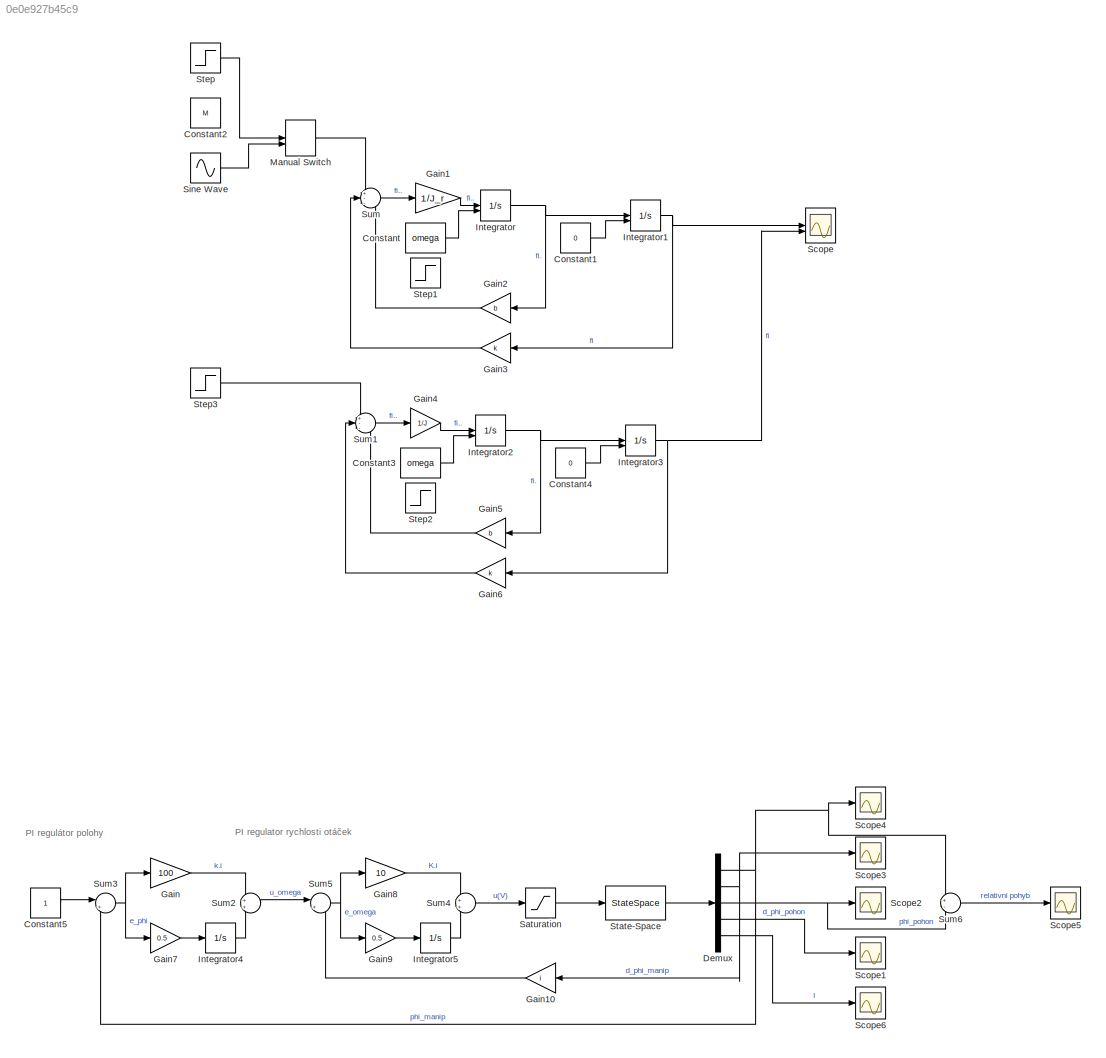
MODEL slx_0e0e927b45c9
KIND model
CONFIG AbsTol = auto
CONFIG EnableMultiTasking = off
CONFIG FixedStep = 1e-6
CONFIG MaxStep = auto
CONFIG MinStep = auto
CONFIG RelTol = 1e-3
CONFIG SampleTimeConstraint = Unconstrained
CONFIG SolverName = FixedStepAuto
CONFIG StartTime = 0.0
CONFIG StopTime = 10
BLOCK [Constant] Constant
  Value = omega
BLOCK [Constant] Constant1
  Value = 0
BLOCK [Constant] Constant2
  Value = M
BLOCK [Constant] Constant3
  Value = omega
BLOCK [Constant] Constant4
  Value = 0
BLOCK [Constant] Constant5
BLOCK [Demux] Demux
  Outputs = 5
BLOCK [Gain] Gain
  Gain = 100
BLOCK [Gain] Gain1
  Gain = 1/J_r
BLOCK [Gain] Gain10
  Gain = i
BLOCK [Gain] Gain2
  Gain = b
BLOCK [Gain] Gain3
  Gain = k
BLOCK [Gain] Gain4
  Gain = 1/J
BLOCK [Gain] Gain5
  Gain = b
BLOCK [Gain] Gain6
  Gain = k
BLOCK [Gain] Gain7
  Gain = 0.5
BLOCK [Gain] Gain8
  Gain = 10
BLOCK [Gain] Gain9
  Gain = 0.5
BLOCK [Integrator] Integrator
  InitialConditionSource = external
BLOCK [Integrator] Integrator1
  InitialConditionSource = external
BLOCK [Integrator] Integrator2
  InitialConditionSource = external
BLOCK [Integrator] Integrator3
  InitialConditionSource = external
BLOCK [Integrator] Integrator4
BLOCK [Integrator] Integrator5
BLOCK [ManualSwitch] Manual Switch
BLOCK [Saturate] Saturation
BLOCK [Scope] Scope
  Floating = off
  NumInputPorts = 2
  ScopeSpecificationString = Simulink.scopes.TimeScopeBlockCfg('CurrentConfiguration', extmgr.ConfigurationSet(extmgr.Configuration('Core','General UI',true),extmgr.Configuration('Core','Source UI',true),extmgr.Configuration('Sources','WiredSimulink',true),extmgr.Configuration('Visuals','Time Domain',true,'SerializedDisplays',{struct('MinYLimReal','-0.00049','MaxYLimReal','0.00442','YLabelReal','','MinYLimMag','0.00000','MaxY...<+1656ch>
BLOCK [Scope] Scope1
  Floating = off
  NumInputPorts = 1
  ScopeSpecificationString = Simulink.scopes.TimeScopeBlockCfg('CurrentConfiguration', extmgr.ConfigurationSet(extmgr.Configuration('Core','General UI',true),extmgr.Configuration('Core','Source UI',true),extmgr.Configuration('Sources','WiredSimulink',true,'DataLoggingVariableName','ScopeData1'),extmgr.Configuration('Visuals','Time Domain',true,'SerializedDisplays',{struct('MinYLimReal','-0.86867','MaxYLimReal','5.65082','YLab...<+1488ch>
BLOCK [Scope] Scope2
  Floating = off
  NumInputPorts = 1
  ScopeSpecificationString = Simulink.scopes.TimeScopeBlockCfg('CurrentConfiguration', extmgr.ConfigurationSet(extmgr.Configuration('Core','General UI',true),extmgr.Configuration('Core','Source UI',true),extmgr.Configuration('Sources','WiredSimulink',true,'DataLoggingVariableName','ScopeData2'),extmgr.Configuration('Visuals','Time Domain',true,'SerializedDisplays',{struct('MinYLimReal','-0.1442','MaxYLimReal','1.29777','YLabe...<+1484ch>
BLOCK [Scope] Scope3
  Floating = off
  NumInputPorts = 1
  ScopeSpecificationString = Simulink.scopes.TimeScopeBlockCfg('CurrentConfiguration', extmgr.ConfigurationSet(extmgr.Configuration('Core','General UI',true),extmgr.Configuration('Core','Source UI',true),extmgr.Configuration('Sources','WiredSimulink',true,'DataLoggingVariableName','ScopeData3'),extmgr.Configuration('Visuals','Time Domain',true,'SerializedDisplays',{struct('MinYLimReal','-0.02896','MaxYLimReal','0.18836','YLab...<+1488ch>
BLOCK [Scope] Scope4
  Floating = off
  NumInputPorts = 1
  ScopeSpecificationString = Simulink.scopes.TimeScopeBlockCfg('CurrentConfiguration', extmgr.ConfigurationSet(extmgr.Configuration('Core','General UI',true),extmgr.Configuration('Core','Source UI',true),extmgr.Configuration('Sources','WiredSimulink',true,'DataLoggingVariableName','ScopeData4'),extmgr.Configuration('Visuals','Time Domain',true,'SerializedDisplays',{struct('MinYLimReal','-0.1442','MaxYLimReal','1.29777','YLabe...<+1483ch>
BLOCK [Scope] Scope5
  Floating = off
  NumInputPorts = 1
  ScopeSpecificationString = Simulink.scopes.TimeScopeBlockCfg('CurrentConfiguration', extmgr.ConfigurationSet(extmgr.Configuration('Core','General UI',true),extmgr.Configuration('Core','Source UI',true),extmgr.Configuration('Sources','WiredSimulink',true,'DataLoggingVariableName','ScopeData5'),extmgr.Configuration('Visuals','Time Domain',true,'SerializedDisplays',{struct('MinYLimReal','-0.00028','MaxYLimReal','0.00185','YLab...<+1492ch>
BLOCK [Scope] Scope6
  Floating = off
  NumInputPorts = 1
  ScopeSpecificationString = Simulink.scopes.TimeScopeBlockCfg('CurrentConfiguration', extmgr.ConfigurationSet(extmgr.Configuration('Core','General UI',true),extmgr.Configuration('Core','Source UI',true),extmgr.Configuration('Sources','WiredSimulink',true,'DataLoggingVariableName','ScopeData6'),extmgr.Configuration('Visuals','Time Domain',true,'SerializedDisplays',{struct('MinYLimReal','-0.02277','MaxYLimReal','0.0303','YLabe...<+1474ch>
BLOCK [Sin] Sine Wave
  Amplitude = M
  Frequency = 10
  SampleTime = 0
BLOCK [StateSpace] State-Space
  A = A
  B = B
  C = C
  D = D
  InitialCondition = 0
BLOCK [Step] Step
  After = M
  SampleTime = 0
  Time = 0
BLOCK [Step] Step1
  After = 0
  Before = 0.5
  SampleTime = 0
BLOCK [Step] Step2
  After = 0
  Before = 0.5
  SampleTime = 0
BLOCK [Step] Step3
  After = M
  SampleTime = 0
  Time = 0
BLOCK [Sum] Sum
  Inputs = +--
BLOCK [Sum] Sum1
  Inputs = +--
BLOCK [Sum] Sum2
BLOCK [Sum] Sum3
  Inputs = |+-
BLOCK [Sum] Sum4
BLOCK [Sum] Sum5
  Inputs = |+-
BLOCK [Sum] Sum6
  Inputs = +-
ANNOTATION (root): PI regulator rychlosti otáček
ANNOTATION (root): PI regulátor polohy
LINE Constant1:1 -> Integrator1:2
LINE Constant3:1 -> Integrator2:2
LINE Constant4:1 -> Integrator3:2
LINE Constant5:1 -> Sum3:1
LINE Constant:1 -> Integrator:2
NET Demux:1 -> Scope4:1, Sum3:2, Sum6:1
NET Demux:2 -> Gain10:1, Scope3:1
NET Demux:3 -> Scope2:1, Sum6:2
LINE Demux:4 -> Scope1:1
LINE Demux:5 -> Scope6:1
LINE Gain10:1 -> Sum5:2
LINE Gain1:1 -> Integrator:1
LINE Gain2:1 -> Sum:3
LINE Gain3:1 -> Sum:2
LINE Gain4:1 -> Integrator2:1
LINE Gain5:1 -> Sum1:3
LINE Gain6:1 -> Sum1:2
LINE Gain7:1 -> Integrator4:1
LINE Gain8:1 -> Sum4:1
LINE Gain9:1 -> Integrator5:1
LINE Gain:1 -> Sum2:1
NET Integrator1:1 -> Gain3:1, Scope:1
NET Integrator2:1 -> Gain5:1, Integrator3:1
NET Integrator3:1 -> Gain6:1, Scope:2
LINE Integrator4:1 -> Sum2:2
LINE Integrator5:1 -> Sum4:2
NET Integrator:1 -> Gain2:1, Integrator1:1
LINE Manual Switch:1 -> Sum:1
LINE Saturation:1 -> State-Space:1
LINE Sine Wave:1 -> Manual Switch:2
LINE State-Space:1 -> Demux:1
LINE Step3:1 -> Sum1:1
LINE Step:1 -> Manual Switch:1
LINE Sum1:1 -> Gain4:1
LINE Sum2:1 -> Sum5:1
NET Sum3:1 -> Gain7:1, Gain:1
LINE Sum4:1 -> Saturation:1
NET Sum5:1 -> Gain8:1, Gain9:1
LINE Sum6:1 -> Scope5:1
LINE Sum:1 -> Gain1:1
note: NET lines group one-source signal fan-out (src -> all destinations, sorted); 1:1 wires keep LINE
